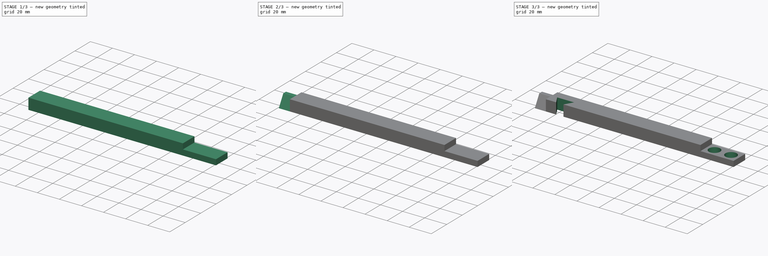
[diagram: build sequence overview — one tinted view per stage of 3, left to right]
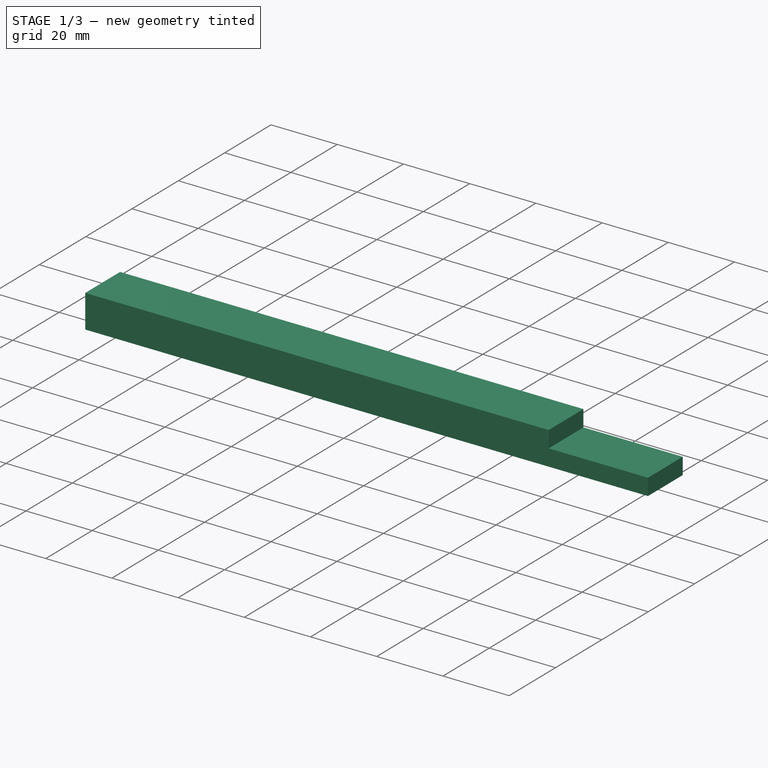
[diagram: stage 1 of 3 — iso view after this stage's code; geometry added in this stage tinted green]
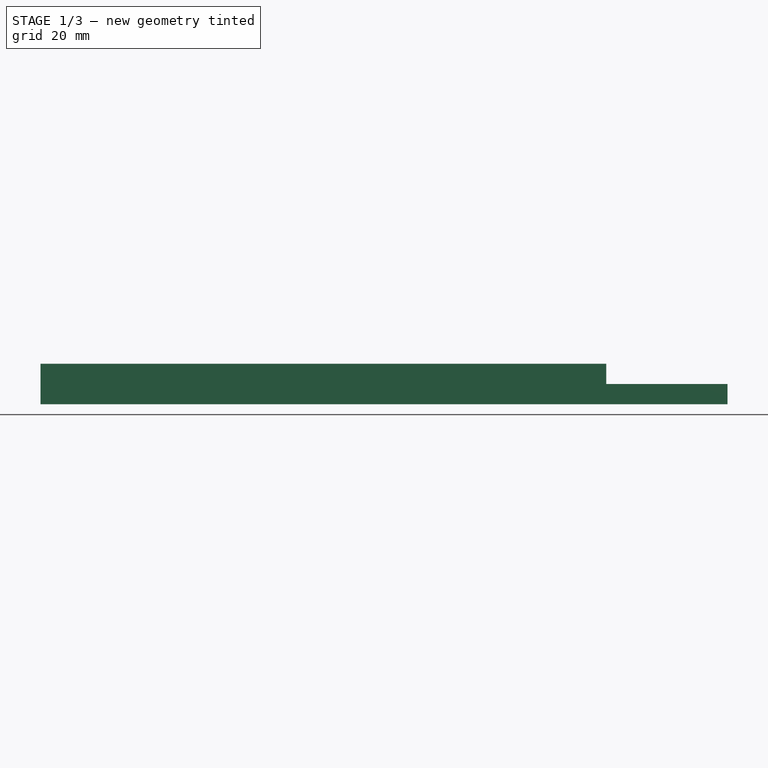
[diagram: stage 1 of 3 — front view after this stage's code; geometry added in this stage tinted green]
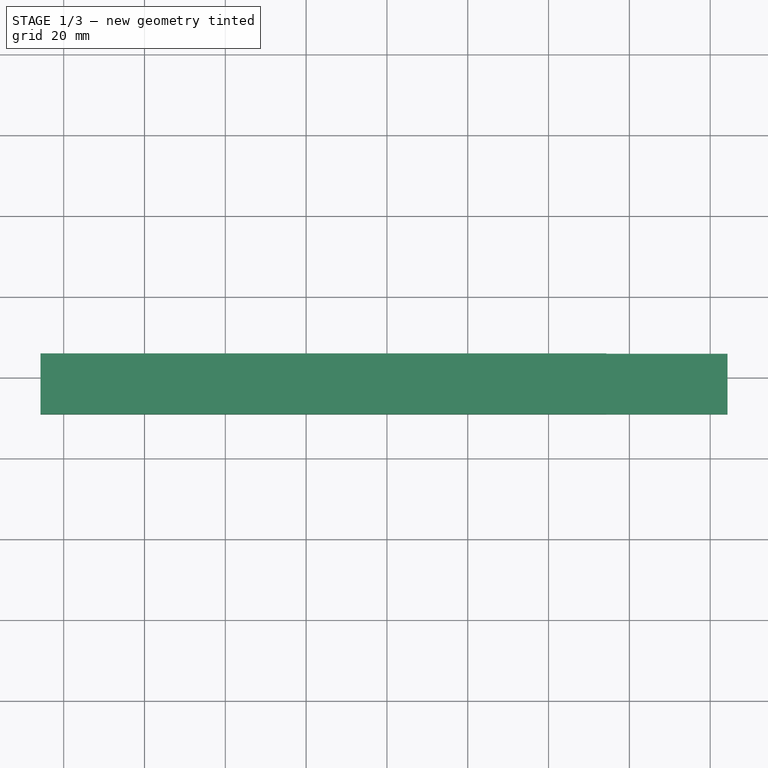
[diagram: stage 1 of 3 — top view after this stage's code; geometry added in this stage tinted green]
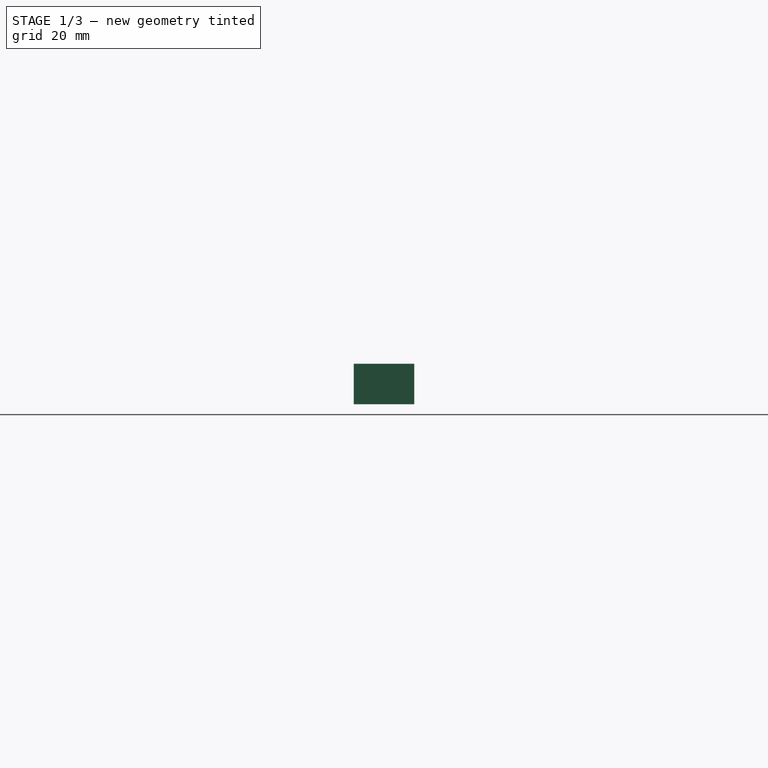
[diagram: stage 1 of 3 — right view after this stage's code; geometry added in this stage tinted green]
FCSTD DOCUMENT  (FreeCAD 0.21R33771 (Git))
Label: BeamA-0
License: All rights reserved
LicenseURL: https://en.wikipedia.org/wiki/All_rights_reserved
objects: Sketcher::SketchObject×5, PartDesign::Pocket×3, PartDesign::Pad×2, PartDesign::Body×1
note: 16 computed .brp shape members not serialized (recipe doc carries the construction recipe); baked Part::Feature solids carry a one-line shape summary decoded from their .brp

FEATURE [Sketcher::SketchObject] Sketch
  FullyConstrained = false
  MapMode = 5
  Support = -> [XY_Plane]
  sketch-geometry (4):
    g0: LineSegment StartX=-105.729 StartY=-9.08076 StartZ=0 EndX=-105.729 EndY=5.91924 EndZ=0
    g1: LineSegment StartX=-105.729 StartY=5.91924 StartZ=0 EndX=64.2711 EndY=5.91924 EndZ=0
    g2: LineSegment StartX=64.2711 StartY=5.91924 StartZ=0 EndX=64.2711 EndY=-9.08076 EndZ=0
    g3: LineSegment StartX=64.2711 StartY=-9.08076 StartZ=0 EndX=-105.729 EndY=-9.08076 EndZ=0
  constraints (10):
    c: Coincident(g0,g1)
    c: Horizontal(g1)
    c: Coincident(g1,g2)
    c: Coincident(g2,g3)
    c: Coincident(g3,g0)
    c: Vertical(g0)
    c: Vertical(g2)
    c: Horizontal(g3)
    c: DistanceX(g0,g1) = 170
    c: DistanceY(g0,g0) = 15
FEATURE [PartDesign::Pad] Pad
  Direction = (0,0,1)
  Length = 10
  Length2 = 10
  Profile = -> Sketch
  ReferenceAxis = -> Sketch [N_Axis]
  Type = 0
FEATURE [Sketcher::SketchObject] Sketch001
  ExternalGeometry = -> [Pad]
  FullyConstrained = true
  MapMode = 5
  Placement = pos=(0,0,10) rot=(0,0,1;0rad)
  Support = -> [Pad]
  sketch-geometry (4):
    g0: LineSegment StartX=34.2711 StartY=-14.0808 StartZ=0 EndX=34.2711 EndY=10.9192 EndZ=0
    g1: LineSegment StartX=34.2711 StartY=10.9192 StartZ=0 EndX=69.2711 EndY=10.9192 EndZ=0
    g2: LineSegment StartX=69.2711 StartY=10.9192 StartZ=0 EndX=69.2711 EndY=-14.0808 EndZ=0
    g3: LineSegment StartX=69.2711 StartY=-14.0808 StartZ=0 EndX=34.2711 EndY=-14.0808 EndZ=0
  constraints (12):
    c: Vertical(g0)
    c: Coincident(g0,g1)
    c: Horizontal(g1)
    c: Coincident(g1,g2)
    c: Vertical(g2)
    c: Coincident(g2,g3)
    c: Coincident(g3,g0)
    c: Horizontal(g3)
    c: DistanceY(g-3,g1) = 5
    c: DistanceY(g2,g-3) = 5
    c: DistanceX(g-3,g1) = 5
    c: DistanceX(g0,g-3) = 30
FEATURE [PartDesign::Pocket] Pocket
  BaseFeature = -> Pad
  Direction = (0,0,-1)
  Length = 5
  Length2 = 5
  Profile = -> Sketch001
  ReferenceAxis = -> Sketch001 [N_Axis]
  Type = 0
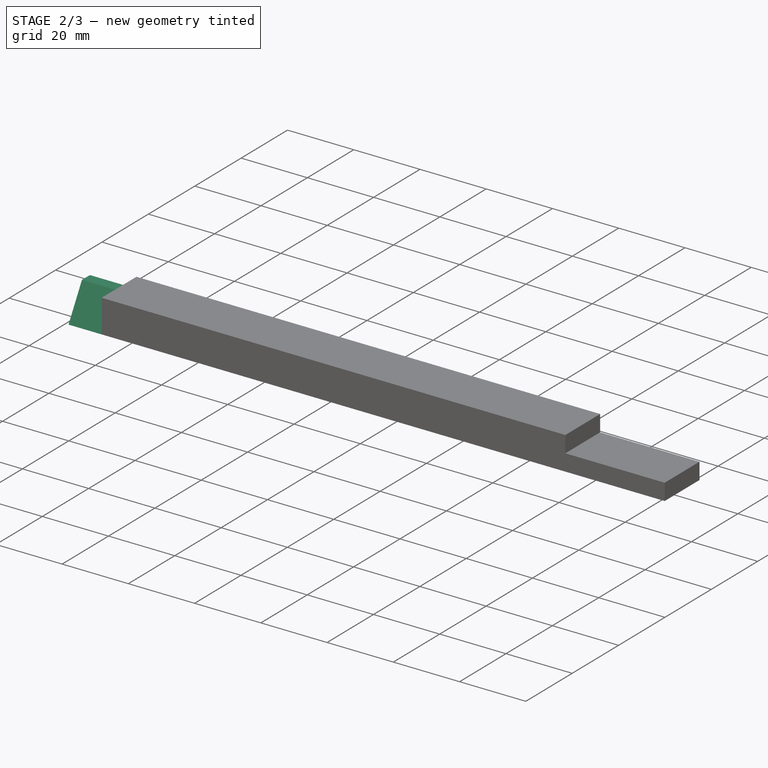
[diagram: stage 2 of 3 — iso view after this stage's code; geometry added in this stage tinted green]
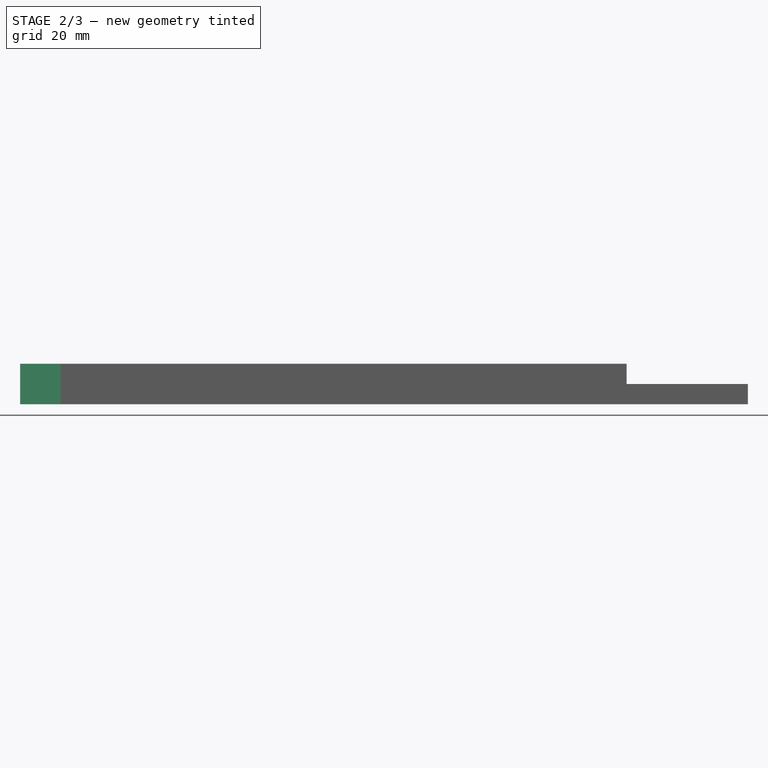
[diagram: stage 2 of 3 — front view after this stage's code; geometry added in this stage tinted green]
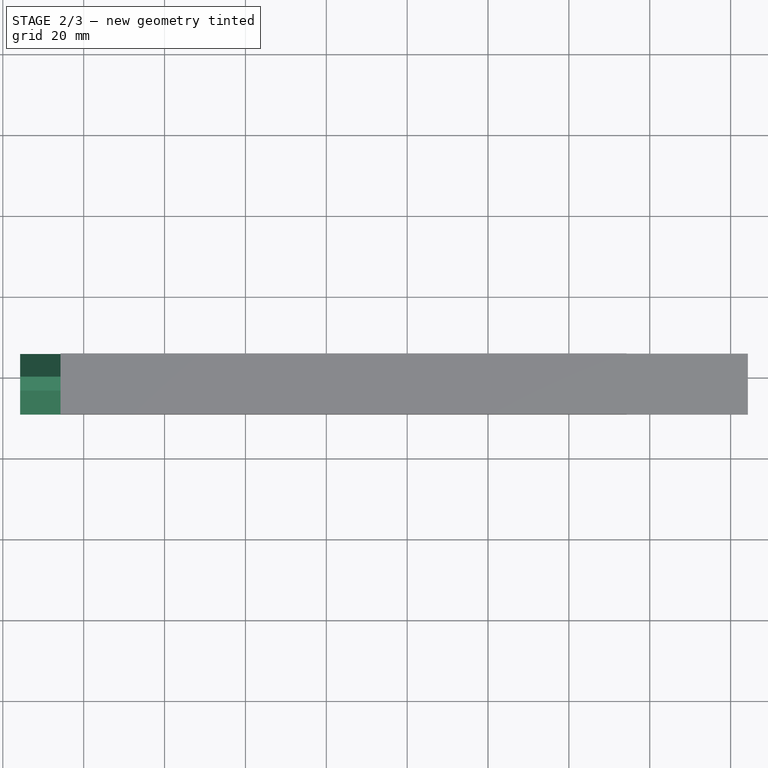
[diagram: stage 2 of 3 — top view after this stage's code; geometry added in this stage tinted green]
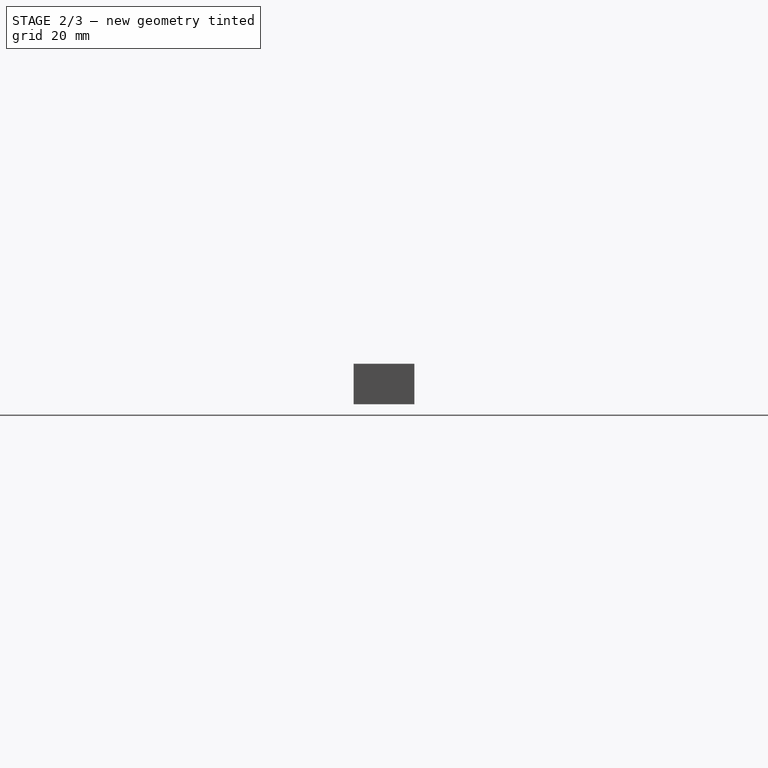
[diagram: stage 2 of 3 — right view after this stage's code; geometry added in this stage tinted green]
FEATURE [Sketcher::SketchObject] Sketch002
  ExternalGeometry = -> [Pocket]
  FullyConstrained = true
  MapMode = 5
  Placement = pos=(0,0,5) rot=(0,0,1;0rad)
  Support = -> [Pocket]
  sketch-geometry (2):
    g0: Circle CenterX=56.7711 CenterY=-1.58076 CenterZ=0 NormalX=0 NormalY=0 NormalZ=1 AngleXU=0 Radius=5.125
    g1: Circle CenterX=41.7711 CenterY=-1.58076 CenterZ=0 NormalX=0 NormalY=0 NormalZ=1 AngleXU=0 Radius=5.125
  constraints (6):
    c: DistanceY(g0,g-3) = 7.5
    c: DistanceY(g1,g0) = 0
    c: DistanceX(g-4,g1) = 7.5
    c: DistanceX(g0,g-3) = 7.5
    c: Diameter(g0) = 10.25
    c: Diameter(g1) = 10.25
FEATURE [Sketcher::SketchObject] Sketch003
  FullyConstrained = false
  MapMode = 5
  Placement = pos=(-105.729,0,0) rot=(0.57735,-0.57735,-0.57735;2.0944rad)
  sketch-geometry (4):
    g0: LineSegment StartX=-5.91924 StartY=0 StartZ=0 EndX=-0.145737 EndY=10 EndZ=0
    g1: LineSegment StartX=-0.145737 StartY=10 StartZ=0 EndX=3.30726 EndY=10 EndZ=0
    g2: LineSegment StartX=3.30726 StartY=10 StartZ=0 EndX=9.08076 EndY=0 EndZ=0
    g3: LineSegment StartX=9.08076 StartY=0 StartZ=0 EndX=-5.91924 EndY=0 EndZ=0
  constraints (7):
    c: Coincident(g0,g1)
    c: Horizontal(g1)
    c: Coincident(g1,g2)
    c: Coincident(g2,g3)
    c: Coincident(g3,g0)
    c: Angle(g3,g0) = 1.0472
    c: Angle(g2,g3) = 1.0472
FEATURE [PartDesign::Pad] Pad002
  BaseFeature = -> Pocket
  Direction = (-1,0,0)
  Length = 10
  Length2 = 10
  Profile = -> Sketch003
  ReferenceAxis = -> Sketch003 [N_Axis]
  Type = 0
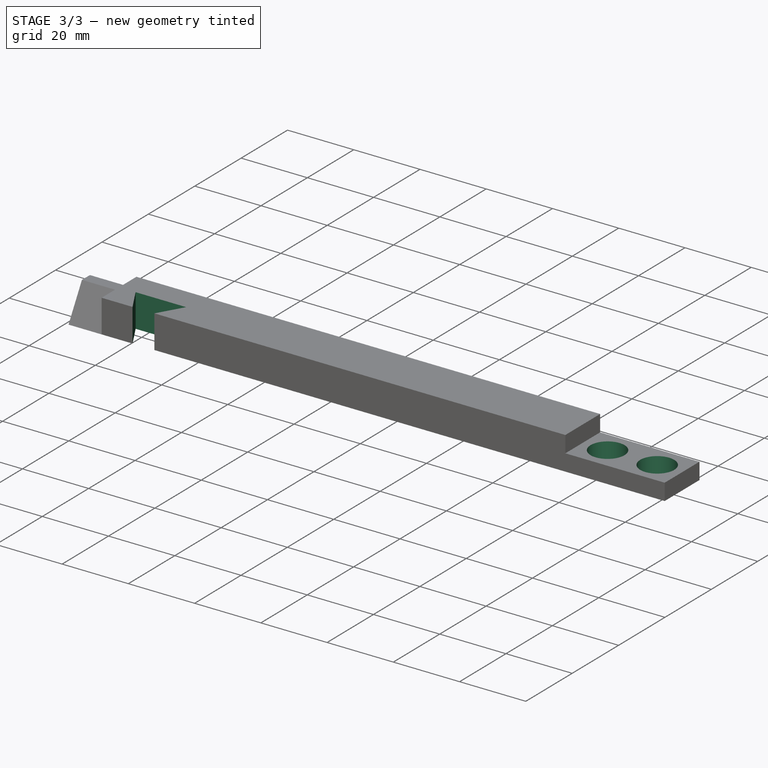
[diagram: stage 3 of 3 — iso view after this stage's code; geometry added in this stage tinted green]
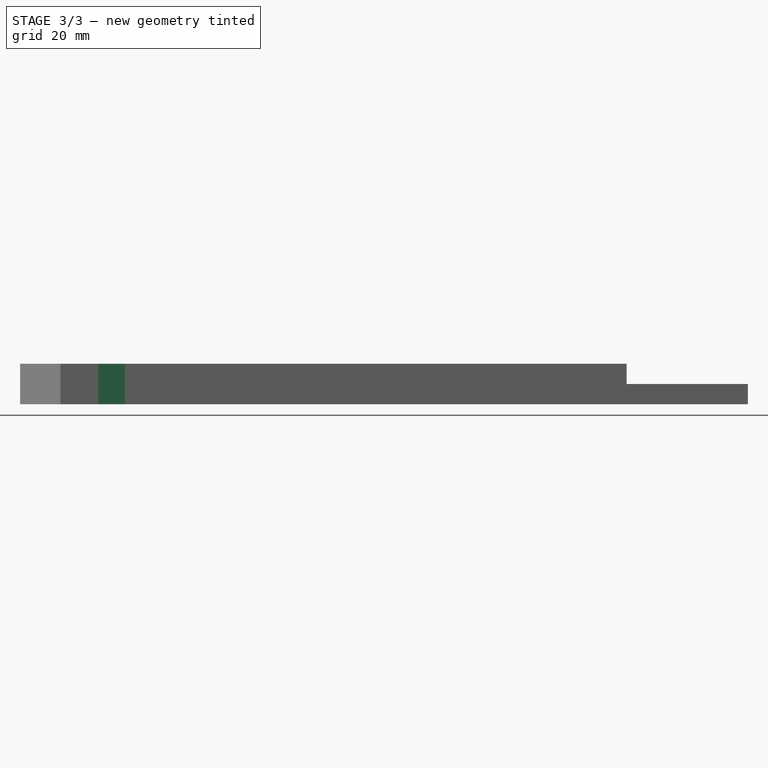
[diagram: stage 3 of 3 — front view after this stage's code; geometry added in this stage tinted green]
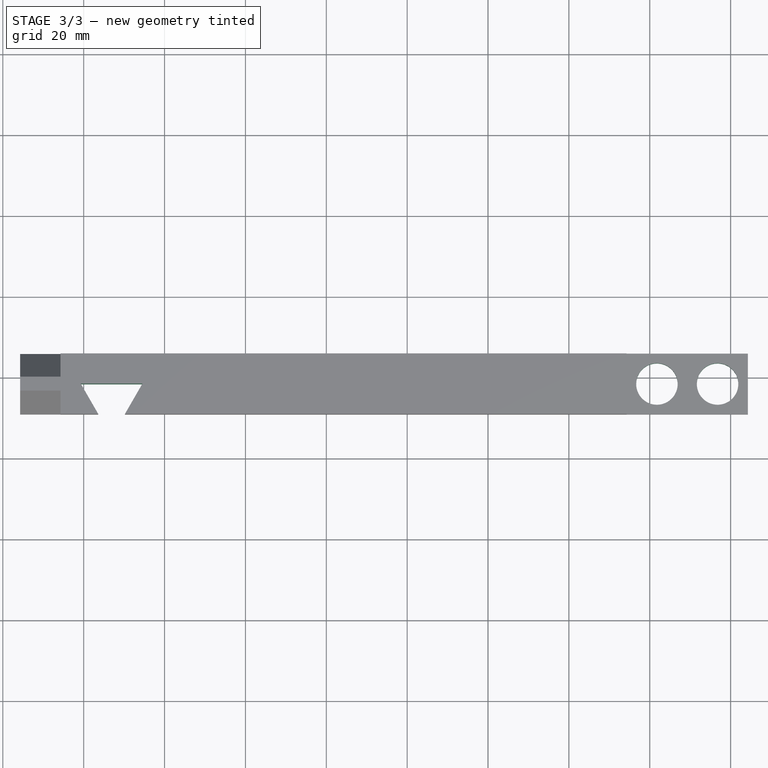
[diagram: stage 3 of 3 — top view after this stage's code; geometry added in this stage tinted green]
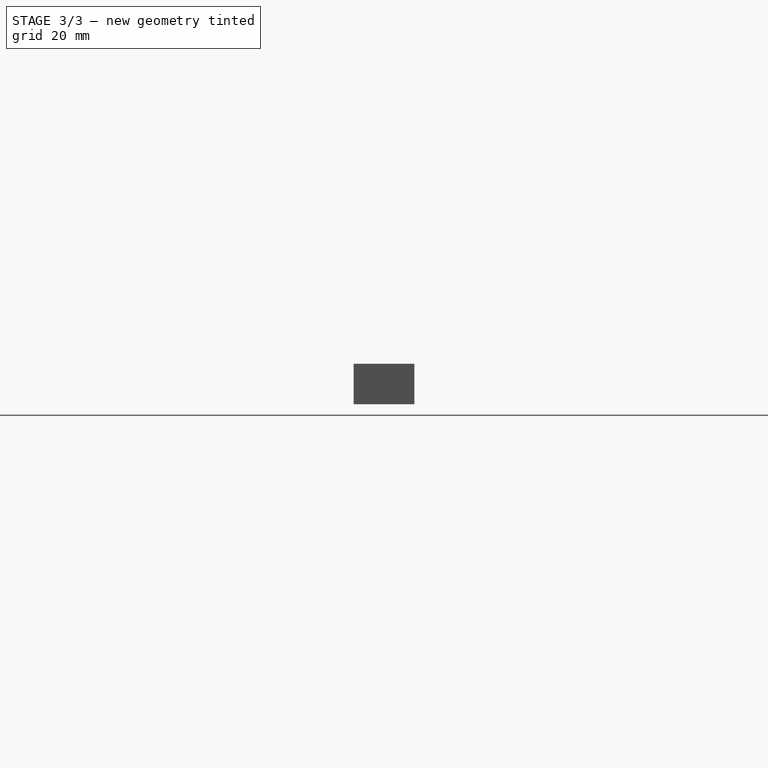
[diagram: stage 3 of 3 — right view after this stage's code; geometry added in this stage tinted green]
FEATURE [Sketcher::SketchObject] Sketch004
  ExternalGeometry = -> [Pad002]
  FullyConstrained = true
  MapMode = 5
  Placement = pos=(0,0,10) rot=(0,0,1;0rad)
  Support = -> [Pad002]
  sketch-geometry (3):
    g0: LineSegment StartX=-93.1039 StartY=-14.7876 StartZ=0 EndX=-100.729 EndY=-1.58076 EndZ=0
    g1: LineSegment StartX=-100.729 StartY=-1.58076 StartZ=0 EndX=-85.4789 EndY=-1.58076 EndZ=0
    g2: LineSegment StartX=-85.4789 StartY=-1.58076 StartZ=0 EndX=-93.1039 EndY=-14.7876 EndZ=0
  constraints (9):
    c: Coincident(g0,g1)
    c: Horizontal(g1)
    c: Coincident(g1,g2)
    c: Coincident(g2,g0)
    c: Angle(g0,g1) = 1.0472
    c: Angle(g1,g2) = 1.0472
    c: DistanceX(g0,g1) = 15.25
    c: DistanceY(g-3,g0) = 7.5
    c: DistanceX(g-3,g0) = 5
FEATURE [PartDesign::Pocket] Pocket001
  BaseFeature = -> Pad002
  Direction = (0,0,-1)
  Length = 10
  Length2 = 5
  Profile = -> Sketch004
  ReferenceAxis = -> Sketch004 [N_Axis]
  Type = 0
FEATURE [PartDesign::Pocket] Pocket002
  BaseFeature = -> Pocket001
  Direction = (0,0,-1)
  Length = 5
  Length2 = 5
  Profile = -> Sketch002
  ReferenceAxis = -> Sketch002 [N_Axis]
  Type = 0
FEATURE [PartDesign::Body] Body
  Group = -> [Sketch,Pad,Sketch001,Pocket,Sketch002,Sketch003,Pad002,Sketch004,Pocket001,Pocket002]
  Origin = -> Origin
  Tip = -> Pocket002
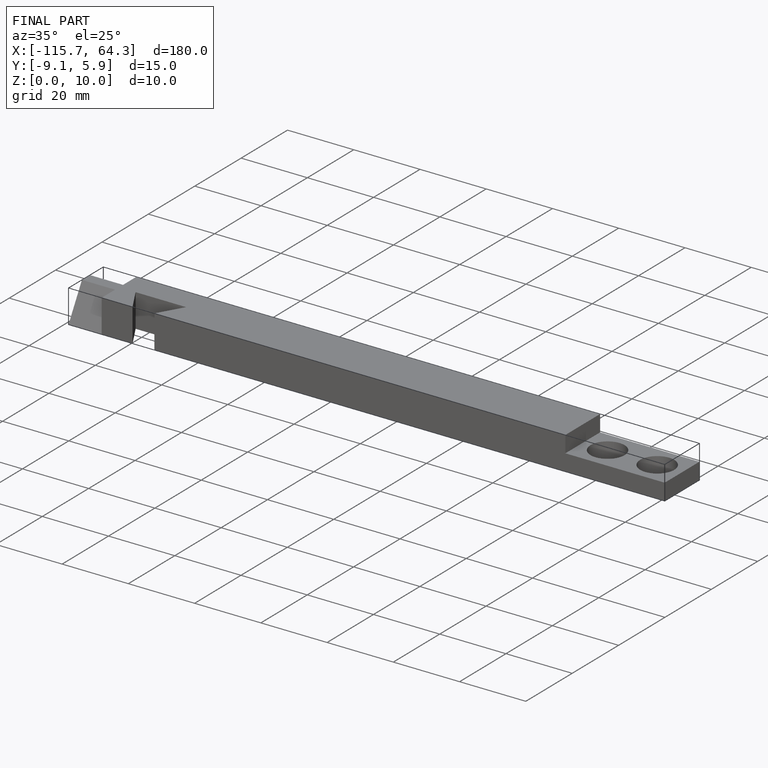
[diagram: finished part — iso view with bounding-box wireframe]
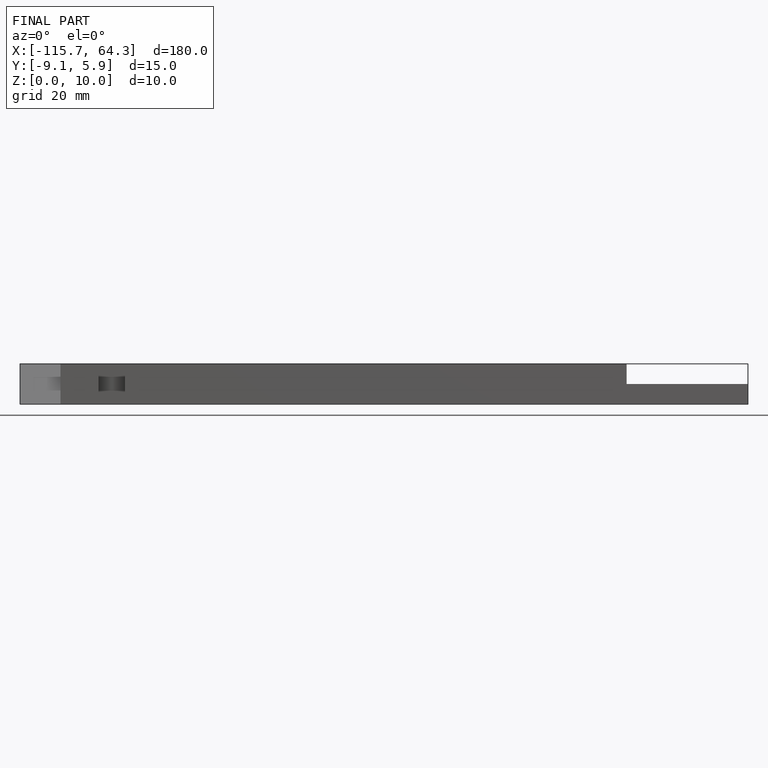
[diagram: finished part — front view with bounding-box wireframe]
